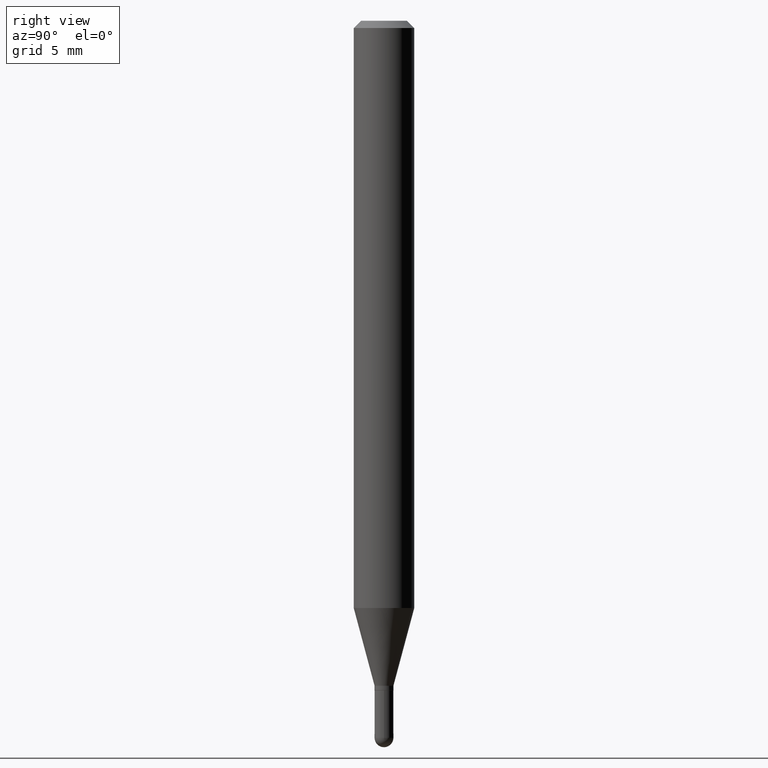
[diagram: clean part render]
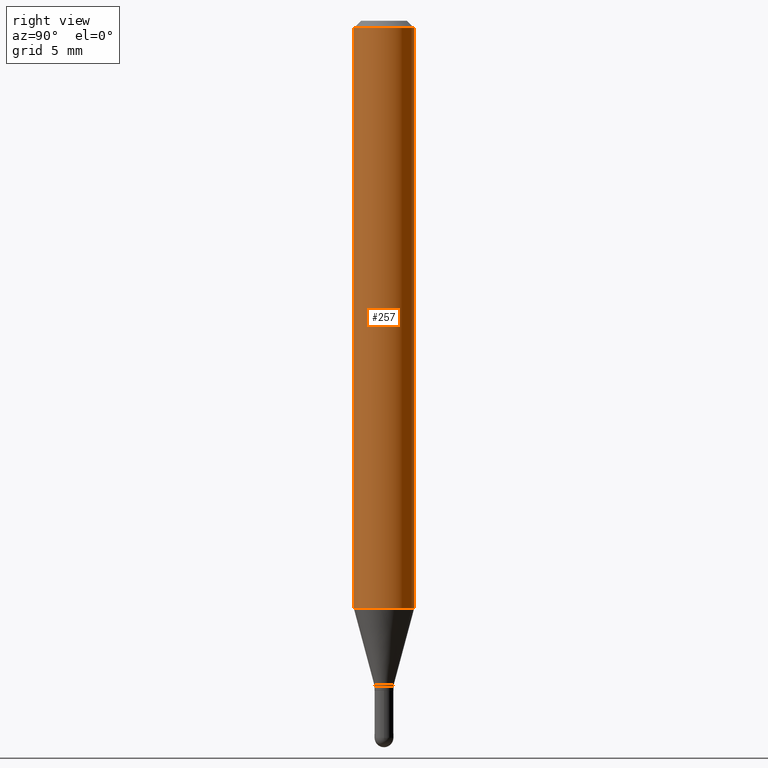
[diagram: same view with one face highlighted and labeled with its STEP entity id]
A machine part, right view. The second image highlights one B-rep face of the part: STEP entity #257.
In plain terms, the highlighted cylindrical surface (edge-blend (fillet) strip) has radius 1.5875 mm, axis along (-0, 0, 1).
Its self-contained STEP definition (entity closure, byte-faithful):
#4 = DIRECTION ( 'NONE',  ( -2.445466670280503659E-29, 3.491484397580147957E-15, 1.000000000000000000 ) ) ;
#15 = ORIENTED_EDGE ( 'NONE', *, *, #25, .T. ) ;
#25 = EDGE_CURVE ( 'NONE', #197, #373, #391, .T. ) ;
#59 = EDGE_LOOP ( 'NONE', ( #505, #15, #249, #332 ) ) ;
#72 = DIRECTION ( 'NONE',  ( -2.445466670280503659E-29, 3.491484397580147957E-15, 1.000000000000000000 ) ) ;
#79 = AXIS2_PLACEMENT_3D ( 'NONE', #408, #4, #201 ) ;
#83 = CARTESIAN_POINT ( 'NONE',  ( -4.364351673553912750E-16, -0.06250000000000005551, -0.01499999999999954321 ) ) ;
#84 = CARTESIAN_POINT ( 'NONE',  ( -4.364351673553620871E-16, -0.06250000000000424660, -1.212521815274538728 ) ) ;
#113 = CARTESIAN_POINT ( 'NONE',  ( 4.440892098500625669E-16, 0.06250000000000000000, -2.182177748487592473E-16 ) ) ;
#115 = DIRECTION ( 'NONE',  ( -6.982962677686265922E-15, -1.000000000000000000, 3.491484397580147957E-15 ) ) ;
#178 = CARTESIAN_POINT ( 'NONE',  ( -4.364351673553916201E-16, -0.06250000000000000000, 2.182177748487592473E-16 ) ) ;
#184 = EDGE_CURVE ( 'NONE', #337, #373, #434, .T. ) ;
#197 = VERTEX_POINT ( 'NONE', #392 ) ;
#201 = DIRECTION ( 'NONE',  ( -6.982962677686265922E-15, -1.000000000000000000, 4.370956789862821150E-15 ) ) ;
#211 = AXIS2_PLACEMENT_3D ( 'NONE', #224, #72, #503 ) ;
#224 = CARTESIAN_POINT ( 'NONE',  ( 3.668200005420697037E-31, -5.237226596370138612E-17, -0.01499999999999976179 ) ) ;
#249 = ORIENTED_EDGE ( 'NONE', *, *, #184, .F. ) ;
#257 = ADVANCED_FACE ( 'NONE', ( #387 ), #305, .T. ) ;
#281 = CARTESIAN_POINT ( 'NONE',  ( 4.440892098500923957E-16, 0.06249999999999995143, -0.01499999999999997863 ) ) ;
#284 = AXIS2_PLACEMENT_3D ( 'NONE', #468, #300, #115 ) ;
#292 = VECTOR ( 'NONE', #427, 39.37007874015748143 ) ;
#295 = LINE ( 'NONE', #178, #460 ) ;
#300 = DIRECTION ( 'NONE',  ( -2.445466670280503659E-29, 3.491484397580147957E-15, 1.000000000000000000 ) ) ;
#305 = CYLINDRICAL_SURFACE ( 'NONE', #284, 0.06250000000000000000 ) ;
#327 = VERTEX_POINT ( 'NONE', #84 ) ;
#332 = ORIENTED_EDGE ( 'NONE', *, *, #496, .F. ) ;
#337 = VERTEX_POINT ( 'NONE', #83 ) ;
#373 = VERTEX_POINT ( 'NONE', #281 ) ;
#376 = DIRECTION ( 'NONE',  ( -2.445466670280503659E-29, 3.491484397580147957E-15, 1.000000000000000000 ) ) ;
#387 = FACE_OUTER_BOUND ( 'NONE', #59, .T. ) ;
#391 = LINE ( 'NONE', #113, #292 ) ;
#392 = CARTESIAN_POINT ( 'NONE',  ( 4.440892098500920012E-16, 0.06249999999999574646, -1.212521815274538950 ) ) ;
#401 = EDGE_CURVE ( 'NONE', #327, #197, #443, .T. ) ;
#408 = CARTESIAN_POINT ( 'NONE',  ( 2.965181686241898291E-29, -4.233500999756610852E-15, -1.212521815274538728 ) ) ;
#427 = DIRECTION ( 'NONE',  ( -2.445466670280503659E-29, 3.491484397580147957E-15, 1.000000000000000000 ) ) ;
#434 = CIRCLE ( 'NONE', #211, 0.06250000000000000000 ) ;
#443 = CIRCLE ( 'NONE', #79, 0.06250000000000000000 ) ;
#460 = VECTOR ( 'NONE', #376, 39.37007874015748143 ) ;
#468 = CARTESIAN_POINT ( 'NONE',  ( 0.000000000000000000, 0.000000000000000000, 0.000000000000000000 ) ) ;
#496 = EDGE_CURVE ( 'NONE', #327, #337, #295, .T. ) ;
#503 = DIRECTION ( 'NONE',  ( -6.982962677686265922E-15, -1.000000000000000000, 3.483106191921935554E-15 ) ) ;
#505 = ORIENTED_EDGE ( 'NONE', *, *, #401, .T. ) ;